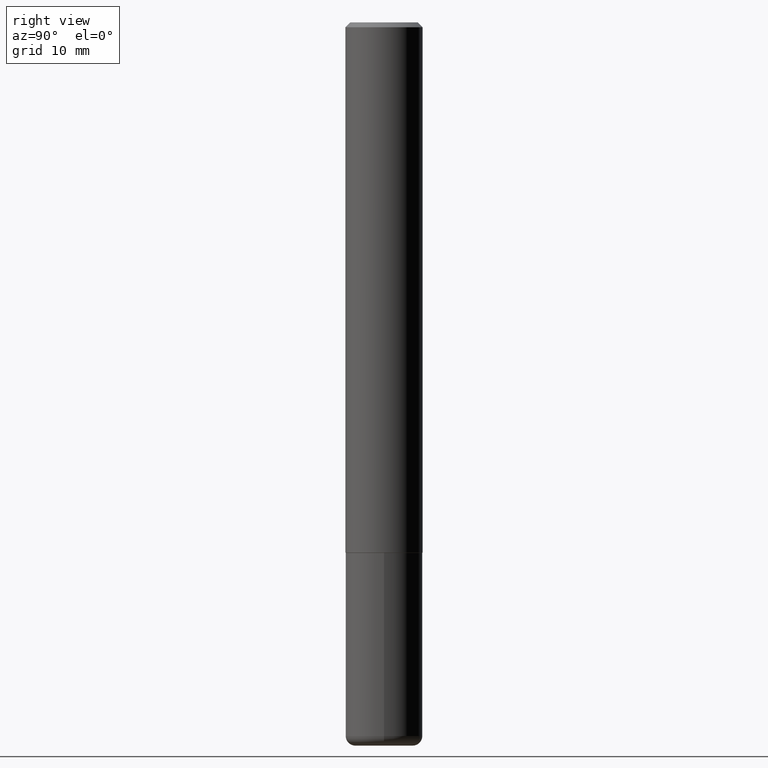
[diagram: clean part render]
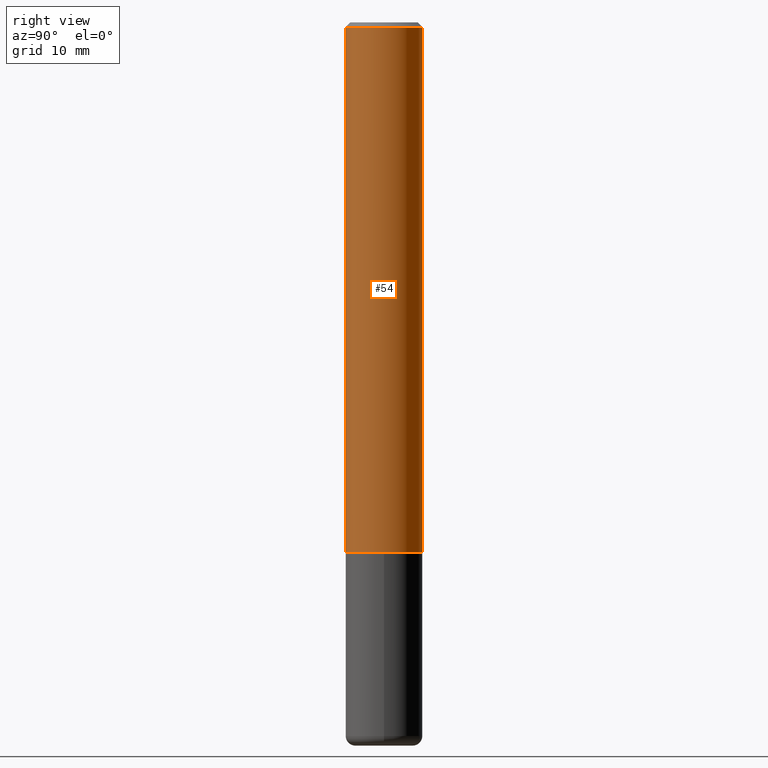
[diagram: same view with one face highlighted and labeled with its STEP entity id]
A machine part, right view. The second image highlights one B-rep face of the part: STEP entity #54.
In plain terms, the highlighted cylindrical surface (partial cylindrical patch) has radius 4.0005 mm, axis along (-0, 0, 1).
Its self-contained STEP definition (entity closure, byte-faithful):
#2 = AXIS2_PLACEMENT_3D ( 'NONE', #162, #233, #283 ) ;
#5 = CYLINDRICAL_SURFACE ( 'NONE', #399, 0.1575000000000001676 ) ;
#11 = EDGE_LOOP ( 'NONE', ( #315, #173, #359, #42 ) ) ;
#15 = AXIS2_PLACEMENT_3D ( 'NONE', #205, #235, #193 ) ;
#25 = DIRECTION ( 'NONE',  ( -2.444928043019069524E-29, 3.492255742475281487E-15, 1.000000000000000000 ) ) ;
#33 = CARTESIAN_POINT ( 'NONE',  ( -1.099816621735536007E-15, -0.1575000000000078559, -2.164399999999999213 ) ) ;
#42 = ORIENTED_EDGE ( 'NONE', *, *, #226, .F. ) ;
#53 = LINE ( 'NONE', #91, #160 ) ;
#54 = ADVANCED_FACE ( 'NONE', ( #195 ), #5, .T. ) ;
#59 = VERTEX_POINT ( 'NONE', #105 ) ;
#64 = LINE ( 'NONE', #223, #85 ) ;
#85 = VECTOR ( 'NONE', #191, 39.37007874015748143 ) ;
#91 = CARTESIAN_POINT ( 'NONE',  ( -1.099816621735587875E-15, -0.1575000000000001676, 5.500302794398574170E-16 ) ) ;
#92 = CIRCLE ( 'NONE', #15, 0.1575000000000000289 ) ;
#105 = CARTESIAN_POINT ( 'NONE',  ( 1.099816621735587480E-15, 0.1574999999999999456, -0.02000000000000058328 ) ) ;
#130 = CARTESIAN_POINT ( 'NONE',  ( 1.119104808822185805E-15, 0.1574999999999927569, -2.164400000000000102 ) ) ;
#146 = EDGE_CURVE ( 'NONE', #147, #248, #297, .T. ) ;
#147 = VERTEX_POINT ( 'NONE', #33 ) ;
#148 = CARTESIAN_POINT ( 'NONE',  ( -1.080528434649015779E-15, -0.1575000000000000844, -0.01999999999999948347 ) ) ;
#160 = VECTOR ( 'NONE', #25, 39.37007874015748143 ) ;
#162 = CARTESIAN_POINT ( 'NONE',  ( 5.291802256310474180E-29, -7.558638329013498276E-15, -2.164399999999999658 ) ) ;
#168 = DIRECTION ( 'NONE',  ( -6.982962677686265133E-15, -1.000000000000000000, 3.492255742475281487E-15 ) ) ;
#173 = ORIENTED_EDGE ( 'NONE', *, *, #303, .T. ) ;
#191 = DIRECTION ( 'NONE',  ( -2.444928043019069524E-29, 3.492255742475281487E-15, 1.000000000000000000 ) ) ;
#193 = DIRECTION ( 'NONE',  ( -6.982962677686264344E-15, -1.000000000000000000, 3.496114991891764787E-15 ) ) ;
#195 = FACE_OUTER_BOUND ( 'NONE', #11, .T. ) ;
#205 = CARTESIAN_POINT ( 'NONE',  ( 4.889856086038147210E-31, -6.984511484950574659E-17, -0.02000000000000003511 ) ) ;
#223 = CARTESIAN_POINT ( 'NONE',  ( 1.119104808822158787E-15, 0.1575000000000001676, -5.500302794398574170E-16 ) ) ;
#226 = EDGE_CURVE ( 'NONE', #147, #385, #53, .T. ) ;
#233 = DIRECTION ( 'NONE',  ( -2.444928043019069804E-29, 3.492255742475281487E-15, 1.000000000000000000 ) ) ;
#235 = DIRECTION ( 'NONE',  ( -2.444928043019069804E-29, 3.492255742475281487E-15, 1.000000000000000000 ) ) ;
#248 = VERTEX_POINT ( 'NONE', #130 ) ;
#283 = DIRECTION ( 'NONE',  ( -6.982962677686265133E-15, -1.000000000000000000, 3.469013325287946588E-15 ) ) ;
#297 = CIRCLE ( 'NONE', #2, 0.1575000000000003064 ) ;
#303 = EDGE_CURVE ( 'NONE', #248, #59, #64, .T. ) ;
#314 = DIRECTION ( 'NONE',  ( -2.444928043019069804E-29, 3.492255742475281487E-15, 1.000000000000000000 ) ) ;
#315 = ORIENTED_EDGE ( 'NONE', *, *, #146, .T. ) ;
#359 = ORIENTED_EDGE ( 'NONE', *, *, #394, .F. ) ;
#364 = CARTESIAN_POINT ( 'NONE',  ( 0.000000000000000000, 0.000000000000000000, 0.000000000000000000 ) ) ;
#385 = VERTEX_POINT ( 'NONE', #148 ) ;
#394 = EDGE_CURVE ( 'NONE', #385, #59, #92, .T. ) ;
#399 = AXIS2_PLACEMENT_3D ( 'NONE', #364, #314, #168 ) ;